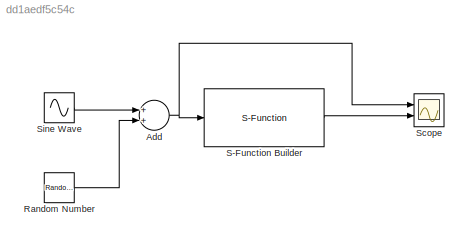
MODEL slx_dd1aedf5c54c
KIND model
BLOCK [Sum] Add
  InputSameDT = off
  OutDataTypeStr = Inherit: Inherit via internal rule
  Ports = [2, 1]
  SaturateOnIntegerOverflow = off
BLOCK [RandomNumber] Random Number
BLOCK [S-Function] S-Function Builder
  CopyFcn = set_param(gcbh,'LinkStatus','none')
  EnableBusSupport = off
  FunctionName = sfun_sbuild_filter
  InitFcn = try, set_param(gcb,'FunctionName','sfun_sbuild_filter'), end
  OpenFcn = sfunctionwizard(gcbh)
  Parameters = 0.005
  Ports = [1, 1]
  PreSaveFcn = try, set_param(gcb,'FunctionName','sfun_sbuild_filter'), end
  SFunctionModules = sfun_sbuild_filter_wrapper
BLOCK [Scope] Scope
  DataFormat = StructureWithTime
  Floating = off
  NumInputPorts = 2
  Ports = [2]
  SampleTime = 0
  ShowLegends = off
  YMax = 5~5
  YMin = -5~-5
BLOCK [Sin] Sine Wave
  Ports = [0, 1]
NET Add:1 -> S-Function Builder:1, Scope:1
LINE Random Number:1 -> Add:2
LINE S-Function Builder:1 -> Scope:2
LINE Sine Wave:1 -> Add:1
note: NET lines group one-source signal fan-out (src -> all destinations, sorted); 1:1 wires keep LINE
